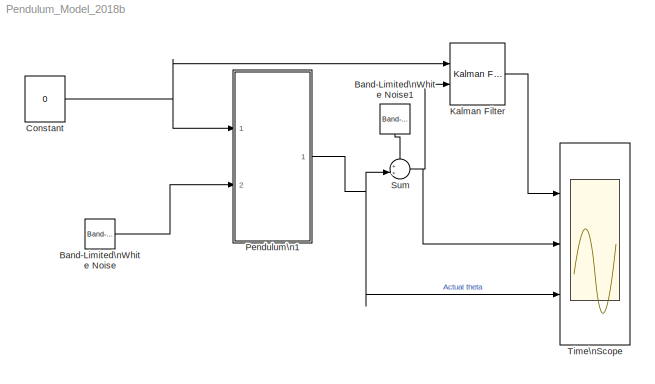
MODEL Pendulum_Model_2018b
KIND model
BLOCK [Reference] Band-Limited\nWhite Noise  REF=simulink/Sources/Band-Limited\nWhite Noise
  Cov = Q*Ts
  Ports = [0, 1]
  SID = 12
  SourceBlock = simulink/Sources/Band-Limited\nWhite Noise
  SourceProductBaseCode = SL
  SourceProductName = Simulink
  SourceType = Band-Limited White Noise.
  Ts = Ts
  VectorParams1D = on
  seed = [23341]
BLOCK [Reference] Band-Limited\nWhite Noise1  REF=simulink/Sources/Band-Limited\nWhite Noise
  Cov = R*Ts
  Ports = [0, 1]
  SID = 13
  SourceBlock = simulink/Sources/Band-Limited\nWhite Noise
  SourceProductBaseCode = SL
  SourceProductName = Simulink
  SourceType = Band-Limited White Noise.
  Ts = Ts
  VectorParams1D = on
  seed = 12347
BLOCK [Constant] Constant
  SID = 14
  Value = 0
BLOCK [Reference] Kalman Filter  REF=ctrlSharedLib/Kalman Filter
  A = A
  AddEnablePort = off
  AddInputPort = on
  B = B
  C = C
  D = D
  ExternalReset = None
  G = 1
  H = 0
  InitialEstimateSource = Dialog
  ModelSource = Individual A, B, C, D matrices
  ModelSourceVariable = ss(0.95,1,1,0,1)
  N = 0
  NumberOfInputs = 1
  NumberOfOutputs = 1
  NumberOfProcessNoiseInputs = 1
  NumberOfStates = 1
  OutputEstimatedY = off
  OutputP = off
  P0 = 10
  Ports = [2, 1]
  Q = diag([0,Q])
  R = R
  SID = 15
  SourceBlock = ctrlSharedLib/Kalman Filter
  SourceProductBaseCode = CT
  SourceProductName = Control System Toolbox
  SourceType = ctrlKalmanFilter
  TimeDomain = Continuous-Time
  TimeInvariantG = on
  TimeInvariantH = on
  TimeInvariantN = on
  TimeInvariantQ = on
  TimeInvariantR = on
  Ts = -1
  UseCurrentEstimator = on
  UseGH = off
  UseK = off
  X0 = [x1_init 0]
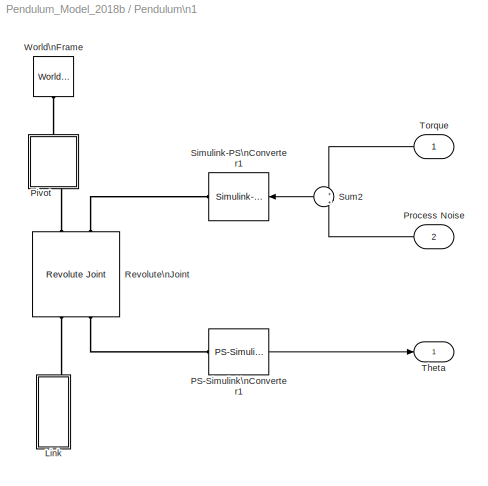
BLOCK [SubSystem] Pendulum\n1
  Ports = [2, 1]
  RequestExecContextInheritance = off
  SID = 16
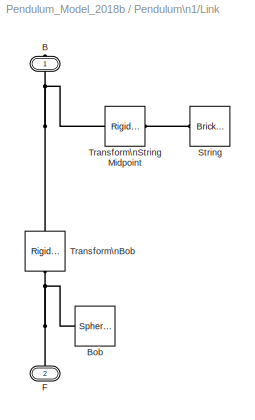
BLOCK [SubSystem] Pendulum\n1/Link
  AncestorBlock = Meldas_Library/Pendulum/Link
  Ports = [0, 0, 0, 0, 0, 1, 1]
  RequestExecContextInheritance = off
  SID = 19
  Tag = CustomStyle
BLOCK [PMIOPort] Pendulum\n1/Link/B
  SID = 19:41
  Side = Right
BLOCK [Reference] Pendulum\n1/Link/Bob  REF=sm_lib/Body Elements/Spherical Solid
  BasedOnType = Density
  CenterOfMass = [0 0 0]
  CenterOfMassUnits = m
  CenterOfMass_conf = compiletime
  Density = 1000
  DensityUnits = kg/(m^3)
  Density_conf = compiletime
  DoExposeReferenceFrame = on
  ExportEntireGeometry = off
  GraphicAmbientColor = [0.15 0.15 0.15 1.0]
  GraphicAmbientColor_conf = compiletime
  GraphicDiffuseColor = [1.0 0.2 0.0]
  GraphicDiffuseColor_conf = compiletime
  GraphicEmissiveColor = [0.0 0.0 0.0 1.0]
  GraphicEmissiveColor_conf = compiletime
  GraphicOpacity = 1.0
  GraphicOpacity_conf = compiletime
  GraphicShininess = 75
  GraphicShininess_conf = compiletime
  GraphicSpecularColor = [0.5 0.5 0.5 1.0]
  GraphicSpecularColor_conf = compiletime
  GraphicType = FromGeometry
  GraphicVisPropType = SimpleVisualProperties
  InertiaType = PointMass
  LogSimulationData = off
  MarkerShape = Sphere
  MarkerSize = 10
  MarkerSize_conf = compiletime
  Mass = m
  MassUnits = kg
  Mass_conf = compiletime
  MomentsOfInertia = [1 1 1]*1e-3
  MomentsOfInertiaUnits = kg*m^2
  MomentsOfInertia_conf = compiletime
  Ports = [0, 0, 0, 0, 0, 0, 1]
  ProductsOfInertia = [0 0 0]
  ProductsOfInertiaUnits = kg*m^2
  ProductsOfInertia_conf = compiletime
  SID = 19:37
  SerializedExposedGeometries = <ExposedGeometries/>
  SerializedFrames = <Frames/>
  SourceBlock = sm_lib/Body Elements/Spherical Solid
  SourceProductBaseCode = MS
  SourceProductName = Simscape Multibody
  SourceType = Spherical Solid
  SphereRadius = 0.05
  SphereRadiusUnits = m
  SphereRadius_conf = compiletime
BLOCK [PMIOPort] Pendulum\n1/Link/F
  Port = 2
  SID = 19:42
  Side = Left
BLOCK [Reference] Pendulum\n1/Link/String  REF=sm_lib/Body Elements/Brick Solid
  BasedOnType = Density
  BrickDimensionUnits = m
  BrickDimensions = [0.01 l 0.01]
  BrickDimensions_conf = compiletime
  CenterOfMass = [0 0 0]
  CenterOfMassUnits = m
  CenterOfMass_conf = compiletime
  Density = 0
  DensityUnits = kg/(m^3)
  Density_conf = compiletime
  DoExposeReferenceFrame = on
  ExportEntireGeometry = off
  GraphicAmbientColor = [0.15 0.15 0.15 1.0]
  GraphicAmbientColor_conf = compiletime
  GraphicDiffuseColor = [1.0 0.2 0.0]
  GraphicDiffuseColor_conf = compiletime
  GraphicEmissiveColor = [0.0 0.0 0.0 1.0]
  GraphicEmissiveColor_conf = compiletime
  GraphicOpacity = 1.0
  GraphicOpacity_conf = compiletime
  GraphicShininess = 75
  GraphicShininess_conf = compiletime
  GraphicSpecularColor = [0.5 0.5 0.5 1.0]
  GraphicSpecularColor_conf = compiletime
  GraphicType = FromGeometry
  GraphicVisPropType = SimpleVisualProperties
  InertiaType = CalculateFromGeometry
  LogSimulationData = off
  MarkerShape = Sphere
  MarkerSize = 10
  MarkerSize_conf = compiletime
  Mass = 0
  MassUnits = kg
  Mass_conf = compiletime
  MomentsOfInertia = [1 1 1]*1e-3
  MomentsOfInertiaUnits = kg*m^2
  MomentsOfInertia_conf = compiletime
  Ports = [0, 0, 0, 0, 0, 0, 1]
  ProductsOfInertia = [0 0 0]
  ProductsOfInertiaUnits = kg*m^2
  ProductsOfInertia_conf = compiletime
  SID = 19:38
  SerializedFrames = <Frames/>
  SourceBlock = sm_lib/Body Elements/Brick Solid
  SourceProductBaseCode = MS
  SourceProductName = Simscape Multibody
  SourceType = Brick Solid
BLOCK [Reference] Pendulum\n1/Link/Transform\nBob   REF=sm_lib/Frames and\nTransforms/Rigid\nTransform
  BaseAlignAxisA = +Y
  BaseAlignAxisB = +Z
  FollAlignAxisA = +X
  FollAlignAxisB = +Y
  LogSimulationData = off
  Ports = [0, 0, 0, 0, 0, 1, 1]
  RotationAngle = 0
  RotationAngleUnits = deg
  RotationAngle_conf = compiletime
  RotationArbitraryAxis = [0 0 1]
  RotationArbitraryAxis_conf = compiletime
  RotationMatrix = [1 0 0; 0 1 0; 0 0 1]
  RotationMatrix_conf = compiletime
  RotationMethod = None
  RotationSequence = XYX
  RotationSequenceAngles = [0 0 0]
  RotationSequenceAnglesUnits = deg
  RotationSequenceAngles_conf = compiletime
  RotationSequenceAxes = FollowerAxes
  RotationStandardAxis = +Z
  SID = 19:39
  SourceBlock = sm_lib/Frames and\nTransforms/Rigid\nTransform
  SourceProductBaseCode = MS
  SourceProductName = Simscape Multibody
  SourceType = Rigid\nTransform
  TranslationCartesianOffset = [0 0 0]
  TranslationCartesianOffset_conf = compiletime
  TranslationLengthUnit = m
  TranslationMethod = StandardAxis
  TranslationROffset = 0
  TranslationROffsetUnits = m
  TranslationROffset_conf = compiletime
  TranslationStandardAxis = -Y
  TranslationStandardOffset = l
  TranslationStandardOffset_conf = compiletime
  TranslationThetaOffset = 0
  TranslationThetaOffsetUnits = deg
  TranslationThetaOffset_conf = compiletime
  TranslationZOffset = 0
  TranslationZOffsetUnits = m
  TranslationZOffset_conf = compiletime
BLOCK [Reference] Pendulum\n1/Link/Transform\nString Midpoint  REF=sm_lib/Frames and\nTransforms/Rigid\nTransform
  BaseAlignAxisA = +Y
  BaseAlignAxisB = +Z
  FollAlignAxisA = +X
  FollAlignAxisB = +Y
  LogSimulationData = off
  Ports = [0, 0, 0, 0, 0, 1, 1]
  RotationAngle = 0
  RotationAngleUnits = deg
  RotationAngle_conf = compiletime
  RotationArbitraryAxis = [0 0 1]
  RotationArbitraryAxis_conf = compiletime
  RotationMatrix = [1 0 0; 0 1 0; 0 0 1]
  RotationMatrix_conf = compiletime
  RotationMethod = None
  RotationSequence = XYX
  RotationSequenceAngles = [0 0 0]
  RotationSequenceAnglesUnits = deg
  RotationSequenceAngles_conf = compiletime
  RotationSequenceAxes = FollowerAxes
  RotationStandardAxis = +Z
  SID = 19:40
  SourceBlock = sm_lib/Frames and\nTransforms/Rigid\nTransform
  SourceProductBaseCode = MS
  SourceProductName = Simscape Multibody
  SourceType = Rigid\nTransform
  TranslationCartesianOffset = [0 0 0]
  TranslationCartesianOffset_conf = compiletime
  TranslationLengthUnit = m
  TranslationMethod = StandardAxis
  TranslationROffset = 0
  TranslationROffsetUnits = m
  TranslationROffset_conf = compiletime
  TranslationStandardAxis = -Y
  TranslationStandardOffset = l/2
  TranslationStandardOffset_conf = compiletime
  TranslationThetaOffset = 0
  TranslationThetaOffsetUnits = deg
  TranslationThetaOffset_conf = compiletime
  TranslationZOffset = 0
  TranslationZOffsetUnits = m
  TranslationZOffset_conf = compiletime
BLOCK [Reference] Pendulum\n1/PS-Simulink\nConverter1  REF=nesl_utility/PS-Simulink\nConverter
  AffineConversion = off
  Frequencies = []
  LeftPortType = input
  PhysicalDomain = network_engine_domain
  Ports = [0, 1, 0, 0, 0, 1]
  PseudoPeriodic = off
  RightPortType = output
  SID = 20
  SourceBlock = nesl_utility/PS-Simulink\nConverter
  SourceProductBaseCode = SS
  SourceProductName = Simscape
  SourceType = PS-Simulink\nConverter
  SubClassName = ps_output
  Unit = 1
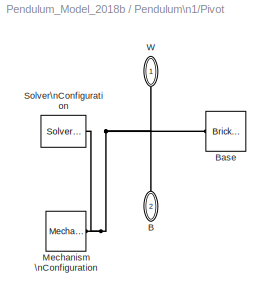
BLOCK [SubSystem] Pendulum\n1/Pivot
  AncestorBlock = Meldas_Library/Pendulum/Pivot
  Ports = [0, 0, 0, 0, 0, 1, 1]
  RequestExecContextInheritance = off
  SID = 21
  Tag = CustomStyle
BLOCK [PMIOPort] Pendulum\n1/Pivot/B
  Port = 2
  SID = 21:41
  Side = Right
BLOCK [Reference] Pendulum\n1/Pivot/Base  REF=sm_lib/Body Elements/Brick Solid
  BasedOnType = Density
  BrickDimensionUnits = m
  BrickDimensions = [0.2 0.05 0.1]
  BrickDimensions_conf = compiletime
  CenterOfMass = [0 0 0]
  CenterOfMassUnits = m
  CenterOfMass_conf = compiletime
  Density = 1000
  DensityUnits = kg/(m^3)
  Density_conf = compiletime
  DoExposeReferenceFrame = on
  ExportEntireGeometry = off
  GraphicAmbientColor = [0.15 0.15 0.15 1.0]
  GraphicAmbientColor_conf = compiletime
  GraphicDiffuseColor = [0.2 0.2 0.2]
  GraphicDiffuseColor_conf = compiletime
  GraphicEmissiveColor = [0.0 0.0 0.0 1.0]
  GraphicEmissiveColor_conf = compiletime
  GraphicOpacity = 1.0
  GraphicOpacity_conf = compiletime
  GraphicShininess = 75
  GraphicShininess_conf = compiletime
  GraphicSpecularColor = [0.5 0.5 0.5 1.0]
  GraphicSpecularColor_conf = compiletime
  GraphicType = FromGeometry
  GraphicVisPropType = SimpleVisualProperties
  InertiaType = CalculateFromGeometry
  LogSimulationData = off
  MarkerShape = Sphere
  MarkerSize = 10
  MarkerSize_conf = compiletime
  Mass = 1
  MassUnits = kg
  Mass_conf = compiletime
  MomentsOfInertia = [1 1 1]*1e-3
  MomentsOfInertiaUnits = kg*m^2
  MomentsOfInertia_conf = compiletime
  Ports = [0, 0, 0, 0, 0, 0, 1]
  ProductsOfInertia = [0 0 0]
  ProductsOfInertiaUnits = kg*m^2
  ProductsOfInertia_conf = compiletime
  SID = 21:37
  SerializedFrames = <Frames/>
  SourceBlock = sm_lib/Body Elements/Brick Solid
  SourceProductBaseCode = MS
  SourceProductName = Simscape Multibody
  SourceType = Brick Solid
BLOCK [Reference] Pendulum\n1/Pivot/Mechanism \nConfiguration  REF=sm_lib/Utilities/Mechanism\nConfiguration
  GravityUnits = m/s^2
  GravityVector = [0 -g 0]
  GravityVector_conf = compiletime
  LinearizationDelta = 0.001
  LogSimulationData = off
  Ports = [0, 0, 0, 0, 0, 0, 1]
  SID = 21:38
  SourceBlock = sm_lib/Utilities/Mechanism\nConfiguration
  SourceProductBaseCode = MS
  SourceProductName = Simscape Multibody
  SourceType = Mechanism\nConfiguration
  UniformGravity = Constant
BLOCK [Reference] Pendulum\n1/Pivot/Solver\nConfiguration  REF=nesl_utility/Solver\nConfiguration
  AbsTol = 1e-06
  AutomaticFiltering = on
  DelaysMemoryBudget = 1024
  DoDC = off
  DoFixedCost = off
  EnableSwitchedLinearOptims = on
  EquationFormulation = NE_TIME_EF
  FilteringTimeConstant = 0.001
  FrequencyDomain = off
  Harmonics = []
  LeftPortType = input
  LinearAlgebra = Sparse
  LocalSolverChoice = NE_BACKWARD_EULER_ADVANCER
  LocalSolverSampleTime = .001
  MaxModeIter = 2
  MaxNonlinIter = 3
  MinStep = 1e-09
  NumHomotopyIterations = 100
  PartitionMemoryBudget = 1024
  PartitionStorageMethod = AS_NEEDED
  PhasorMode = off
  PhasorModeNumHarmonics = 1
  PhysicalDomain = network_engine_domain
  Ports = [0, 0, 0, 0, 0, 0, 1]
  Profile = off
  RelTol = 0.001
  ResidualTolerance = 1e-9
  RevertToSquareIcSolve = off
  RightPortType = generic
  SID = 21:39
  SimulateNoise = off
  SourceBlock = nesl_utility/Solver\nConfiguration
  SourceProductBaseCode = SS
  SourceProductName = Simscape
  SourceType = Solver\nConfiguration
  SubClassName = solver
  ToWorkspace = off
  Tones = []
  UseCCode = off
  UseLocalSampling = off
  UseLocalSolver = off
BLOCK [PMIOPort] Pendulum\n1/Pivot/W
  SID = 21:40
  Side = Left
BLOCK [Inport] Pendulum\n1/Process Noise
  IconDisplay = Port number
  Port = 2
  SID = 18
BLOCK [Reference] Pendulum\n1/Revolute\nJoint  REF=sm_lib/Joints/Revolute Joint
  CompositeWrenchDir = FollowerOnBase
  CompositeWrenchFrame = BaseFrame
  DampingCoefficient = 0
  DampingCoefficientUnits = N*m/(rad/s)
  DampingCoefficient_conf = compiletime
  EquilibriumPosition = 0
  EquilibriumPositionUnits = rad
  EquilibriumPosition_conf = compiletime
  LogSimulationData = off
  MotionActuationMode = ComputedMotion
  Ports = [0, 0, 0, 0, 0, 2, 2]
  PositionTargetPriority = High
  PositionTargetSpecify = on
  PositionTargetValue = theta_0
  PositionTargetValueUnits = rad
  PositionTargetValue_conf = compiletime
  SID = 22
  SenseAcceleration = off
  SenseConstraintForce = off
  SenseConstraintForceX = off
  SenseConstraintForceY = off
  SenseConstraintForceZ = off
  SenseConstraintTorque = off
  SenseConstraintTorqueX = off
  SenseConstraintTorqueY = off
  SenseConstraintTorqueZ = off
  SensePosition = on
  SenseTorqueForce = off
  SenseTotalForce = off
  SenseTotalForceX = off
  SenseTotalForceY = off
  SenseTotalForceZ = off
  SenseTotalTorque = off
  SenseTotalTorqueX = off
  SenseTotalTorqueY = off
  SenseTotalTorqueZ = off
  SenseVelocity = off
  SourceBlock = sm_lib/Joints/Revolute Joint
  SourceProductBaseCode = MS
  SourceProductName = Simscape Multibody
  SourceType = Revolute Joint
  SpringStiffness = 0
  SpringStiffnessUnits = N*m/rad
  SpringStiffness_conf = compiletime
  TorqueActuationMode = InputTorque
  VelocityTargetPriority = High
  VelocityTargetSpecify = on
  VelocityTargetValue = theta_dot_0
  VelocityTargetValueUnits = rad/s
  VelocityTargetValue_conf = compiletime
BLOCK [Reference] Pendulum\n1/Simulink-PS\nConverter1  REF=nesl_utility/Simulink-PS\nConverter
  AffineConversion = off
  FilteringAndDerivatives = provide
  Frequencies = []
  InputFilterTimeConstant = 0.001
  LeftPortType = input
  NoiseDistribution = none
  NoiseParameters = []
  PhysicalDomain = network_engine_domain
  Ports = [1, 0, 0, 0, 0, 0, 1]
  PseudoPeriodic = off
  RightPortType = output
  SID = 23
  SimscapeFilterOrder = 1
  SourceBlock = nesl_utility/Simulink-PS\nConverter
  SourceProductBaseCode = SS
  SourceProductName = Simscape
  SourceType = Simulink-PS\nConverter
  SubClassName = ps_input
  UdotUserProvided = 0
  Unit = 1
BLOCK [Sum] Pendulum\n1/Sum2
  IconShape = round
  InputSameDT = off
  Inputs = +|+
  OutDataTypeStr = Inherit: Inherit via internal rule
  Ports = [2, 1]
  SID = 24
  SaturateOnIntegerOverflow = off
BLOCK [Outport] Pendulum\n1/Theta
  IconDisplay = Port number
  SID = 26
  VectorParamsAs1DForOutWhenUnconnected = on
BLOCK [Inport] Pendulum\n1/Torque
  IconDisplay = Port number
  SID = 17
BLOCK [Reference] Pendulum\n1/World\nFrame  REF=sm_lib/Frames and\nTransforms/World Frame
  LogSimulationData = off
  Ports = [0, 0, 0, 0, 0, 0, 1]
  SID = 25
  SourceBlock = sm_lib/Frames and\nTransforms/World Frame
  SourceProductBaseCode = MS
  SourceProductName = Simscape Multibody
  SourceType = World Frame
BLOCK [Sum] Sum
  IconShape = round
  InputSameDT = off
  OutDataTypeStr = Inherit: Inherit via internal rule
  Ports = [2, 1]
  SID = 27
  SaturateOnIntegerOverflow = off
BLOCK [Scope] Time\nScope
  DefaultConfigurationName = spbscopes.TimeScopeBlockCfg
  Floating = off
  NumInputPorts = 3
  Ports = [3]
  SID = 28
  ScopeSpecificationString = spbscopes.TimeScopeBlockCfg('CurrentConfiguration', extmgr.ConfigurationSet(extmgr.Configuration('Core','General UI',true),extmgr.Configuration('Core','Source UI',true),extmgr.Configuration('Sources','WiredSimulink',true,'DataLoggingVariableName','ScopeData1'),extmgr.Configuration('Visuals','Time Domain',true,'DisplayPropertyDefaults',struct('MinYLimReal','-10','MaxYLimReal','10','YLabelReal','Amp...<+1315ch>
  UserDataPersistent = on
LINE Band-Limited\nWhite Noise1:1 -> Sum:1
LINE Band-Limited\nWhite Noise:1 -> Pendulum\n1:2
NET Constant:1 -> Kalman Filter:1, Pendulum\n1:1
LINE Kalman Filter:1 -> Time\nScope:1
LINE Pendulum\n1/PS-Simulink\nConverter1:1 -> Pendulum\n1/Theta:1
LINE Pendulum\n1/Process Noise:1 -> Pendulum\n1/Sum2:2
LINE Pendulum\n1/Sum2:1 -> Pendulum\n1/Simulink-PS\nConverter1:1
LINE Pendulum\n1/Torque:1 -> Pendulum\n1/Sum2:1
NET Pendulum\n1:1 -> Sum:2, Time\nScope:3
NET Sum:1 -> Kalman Filter:2, Time\nScope:2
PNET net1: Pendulum\n1/Link/B:RConn1 -- Pendulum\n1/Link/Transform\nBob :LConn1 -- Pendulum\n1/Link/Transform\nString Midpoint:LConn1
PNET net2: Pendulum\n1/Link/Bob:RConn1 -- Pendulum\n1/Link/F:RConn1 -- Pendulum\n1/Link/Transform\nBob :RConn1
PLINE Pendulum\n1/Link/String:RConn1 -- Pendulum\n1/Link/Transform\nString Midpoint:RConn1
PLINE Pendulum\n1/Link:RConn1 -- Pendulum\n1/Revolute\nJoint:RConn1
PLINE Pendulum\n1/PS-Simulink\nConverter1:LConn1 -- Pendulum\n1/Revolute\nJoint:RConn2
PNET net3: Pendulum\n1/Pivot/B:RConn1 -- Pendulum\n1/Pivot/Base:RConn1 -- Pendulum\n1/Pivot/Mechanism \nConfiguration:RConn1 -- Pendulum\n1/Pivot/Solver\nConfiguration:RConn1 -- Pendulum\n1/Pivot/W:RConn1
PLINE Pendulum\n1/Pivot:LConn1 -- Pendulum\n1/World\nFrame:RConn1
PLINE Pendulum\n1/Pivot:RConn1 -- Pendulum\n1/Revolute\nJoint:LConn1
PLINE Pendulum\n1/Revolute\nJoint:LConn2 -- Pendulum\n1/Simulink-PS\nConverter1:RConn1
note: NET lines group one-source signal fan-out (src -> all destinations, sorted); 1:1 wires keep LINE; PNET lines group multi-terminal physical nets as a canonical sorted terminal list (undirected conserving connections); 2-terminal nets keep the pairwise PLINE form
